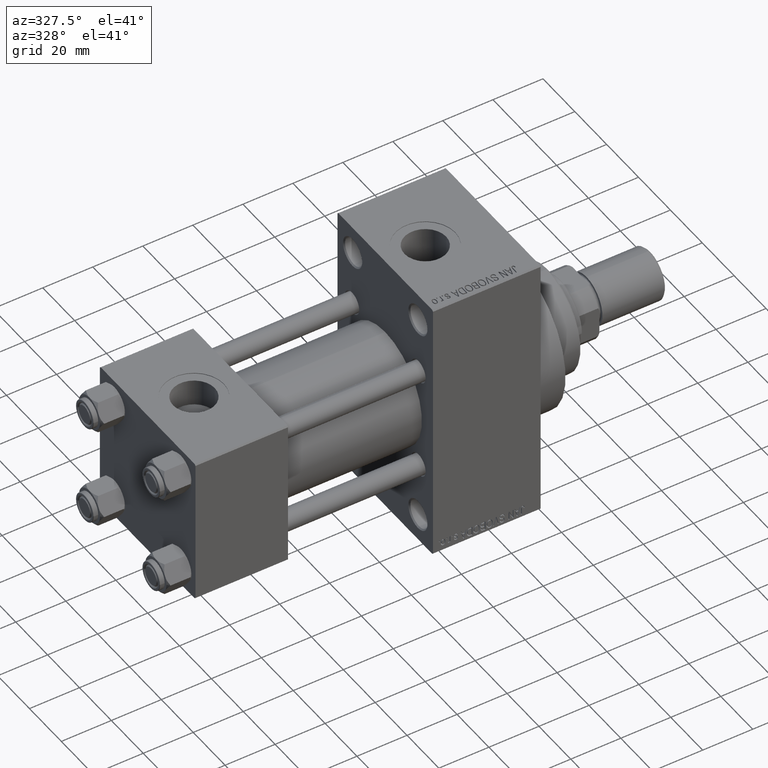
[diagram: clean part render]
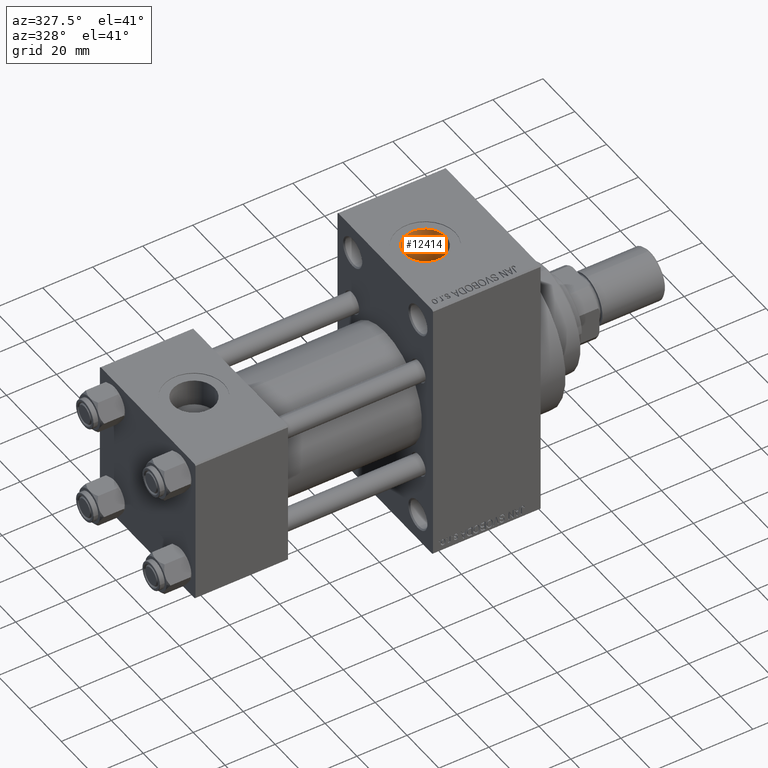
[diagram: same view with one face highlighted and labeled with its STEP entity id]
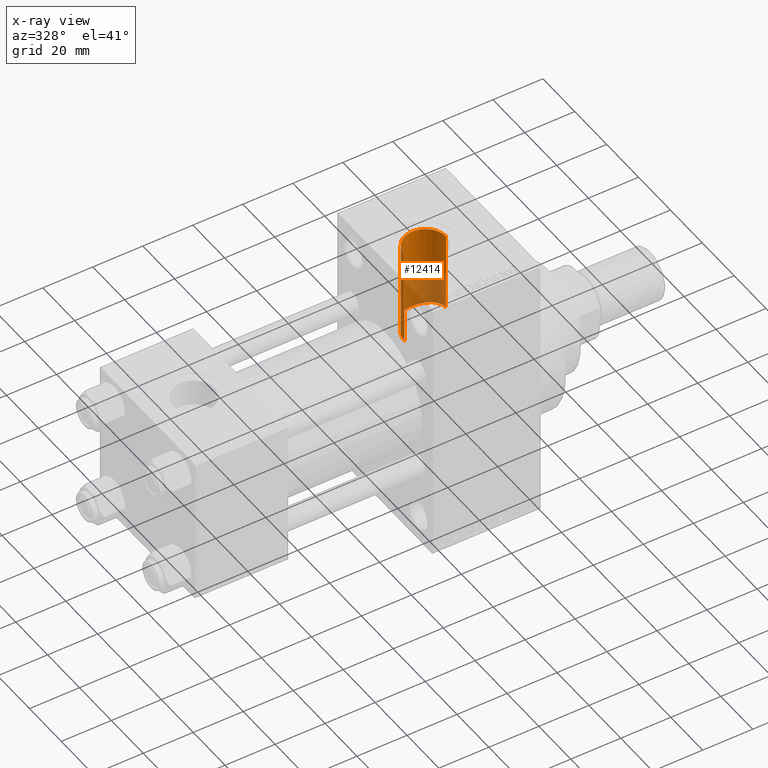
[diagram: x-ray of the same camera — body ghosted, the highlighted face saturated]
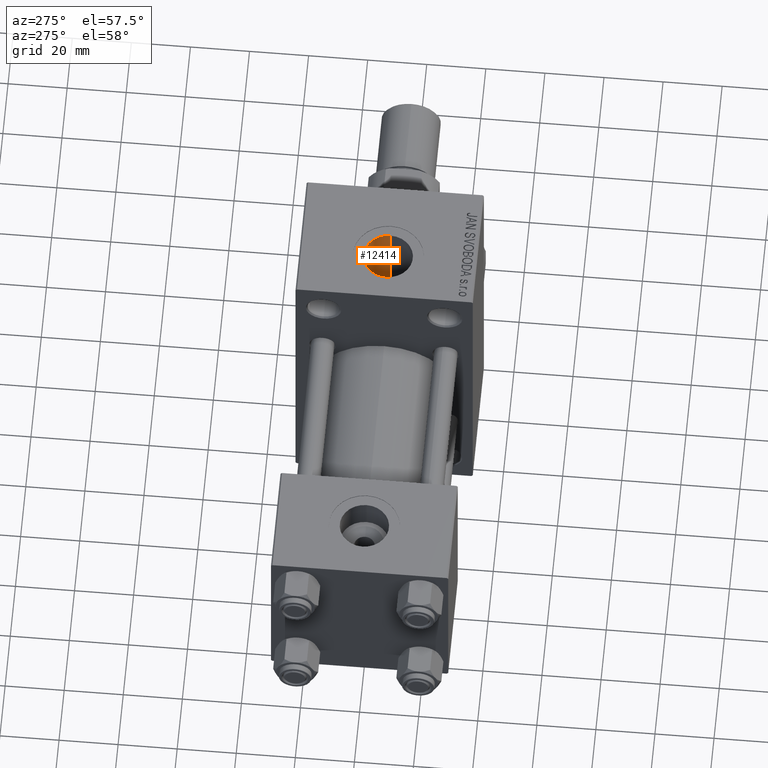
[diagram: same view with one face highlighted and labeled with its STEP entity id]
A machine part, auxiliary view. The second image highlights one B-rep face of the part: STEP entity #12414.
The next image is the same camera in x-ray: the body ghosted, the highlighted face saturated — about 41% of this face is hidden behind the body in this view.
A second angle (auxiliary view) of the same face is appended — the face is thin or edge-on in the first view.
In plain terms, the highlighted cylindrical surface (edge-blend (fillet) strip) has radius 8.33 mm, axis along (0, 0, -1).
Its self-contained STEP definition (entity closure, byte-faithful):
#73 = CIRCLE ( 'NONE', #45514, 8.330000000000003624 ) ;
#1595 = DIRECTION ( 'NONE',  ( -0.000000000000000000, -0.000000000000000000, -1.000000000000000000 ) ) ;
#1686 = CARTESIAN_POINT ( 'NONE',  ( 105.2948812944179906, 6.127635735486580693, 21.65933820537497922 ) ) ;
#2159 = CARTESIAN_POINT ( 'NONE',  ( 112.3216909083368051, 8.235391011504226810, 20.93889481549789977 ) ) ;
#2269 = CARTESIAN_POINT ( 'NONE',  ( 102.7174933147919518, 1.021562003714719946, 15.47433190880105158 ) ) ;
#2390 = CARTESIAN_POINT ( 'NONE',  ( 105.9286092801891357, 6.661339213704161821, 21.49628500278263488 ) ) ;
#5545 = CARTESIAN_POINT ( 'NONE',  ( 116.4564057214795554, 6.307878676097790738, 21.59935801946436840 ) ) ;
#5889 = CARTESIAN_POINT ( 'NONE',  ( 104.5783165169662681, 5.311397431478281916, 14.56289306040261522 ) ) ;
#6082 = B_SPLINE_CURVE_WITH_KNOTS ( 'NONE', 3,
 ( #38586, #1686, #2390, #42427, #27705, #17326, #6238, #38817, #13233, #16400, #28408, #31792, #42901, #16865, #2159, #35672, #13005, #24560, #9386, #27940, #31091, #5545, #45811, #31331, #12770, #43130, #27471, #42197, #20704, #23857, #24092, #24326, #39057, #46745 ),
 .UNSPECIFIED., .F., .F.,
 ( 4, 2, 2, 2, 2, 2, 2, 2, 2, 2, 2, 2, 2, 2, 2, 2, 4 ),
 ( 0.000000000000000000, 0.002532697760304313851, 0.003165872200380401204, 0.003799046640456488558, 0.005065395520608662397, 0.006331744400760835369, 0.007598093280913010075, 0.008864442161065183914, 0.01013079104121735602, 0.01139713992136953159, 0.01266348880152170543, 0.01392983768167388274, 0.01519618656182605658, 0.01646253544197823215, 0.01772888432213040599, 0.01899523320228257983, 0.02026158208243475367 ),
 .UNSPECIFIED. ) ;
#6116 = CARTESIAN_POINT ( 'NONE',  ( 104.7400000000000233, 5.495570943951171294, 14.49305695841976593 ) ) ;
#6238 = CARTESIAN_POINT ( 'NONE',  ( 107.5704381520594666, 7.594124707910266281, 21.17986642145408993 ) ) ;
#6322 = VECTOR ( 'NONE', #35007, 1000.000000000000000 ) ;
#6867 = CARTESIAN_POINT ( 'NONE',  ( 102.6700000000000017, 6.302828629382400162E-15, 77.29999999999999716 ) ) ;
#7236 = DIRECTION ( 'NONE',  ( -1.000000000000000000, 0.000000000000000000, 0.000000000000000000 ) ) ;
#9386 = CARTESIAN_POINT ( 'NONE',  ( 114.7236659699604076, 7.463206326023615667, 21.22729274660728649 ) ) ;
#10622 = ORIENTED_EDGE ( 'NONE', *, *, #40876, .F. ) ;
#11586 = ORIENTED_EDGE ( 'NONE', *, *, #43164, .T. ) ;
#12414 = ADVANCED_FACE ( 'NONE', ( #33762 ), #32797, .F. ) ;
#12633 = CARTESIAN_POINT ( 'NONE',  ( 104.7400000000000233, 5.495570943951171294, 14.49305695841976593 ) ) ;
#12770 = CARTESIAN_POINT ( 'NONE',  ( 117.6044044703109819, 5.093465402724836721, 21.91867937644421005 ) ) ;
#13005 = CARTESIAN_POINT ( 'NONE',  ( 113.5539892842377157, 7.939907640306449466, 21.05309719302650606 ) ) ;
#13111 = CARTESIAN_POINT ( 'NONE',  ( 104.4233358504306040, 5.118288244927969188, 14.63205129005097227 ) ) ;
#13233 = CARTESIAN_POINT ( 'NONE',  ( 108.5452642440799877, 7.971261652067459735, 21.04094346462040832 ) ) ;
#13462 = VERTEX_POINT ( 'NONE', #31442 ) ;
#14368 = EDGE_CURVE ( 'NONE', #27697, #37222, #40132, .T. ) ;
#14417 = ORIENTED_EDGE ( 'NONE', *, *, #14774, .F. ) ;
#14774 = EDGE_CURVE ( 'NONE', #24473, #43211, #20264, .T. ) ;
#15946 = ORIENTED_EDGE ( 'NONE', *, *, #20242, .T. ) ;
#16400 = CARTESIAN_POINT ( 'NONE',  ( 109.3628503782894370, 8.178415560073139190, 20.96129368941303284 ) ) ;
#16865 = CARTESIAN_POINT ( 'NONE',  ( 111.8956073634822985, 8.292491378959157444, 20.91614820275089670 ) ) ;
#17326 = CARTESIAN_POINT ( 'NONE',  ( 107.3806461157530379, 7.505553168791515795, 21.21148300119394392 ) ) ;
#17443 = CARTESIAN_POINT ( 'NONE',  ( 104.1328253103859112, 4.721366081625451905, 14.76490778285210759 ) ) ;
#19046 = CARTESIAN_POINT ( 'NONE',  ( 111.0000000000000000, 6.302828629382400162E-15, 77.29999999999999716 ) ) ;
#19576 = ORIENTED_EDGE ( 'NONE', *, *, #14368, .T. ) ;
#19752 = CARTESIAN_POINT ( 'NONE',  ( 104.7400000000000233, 5.495570943951171294, 77.29999999999999716 ) ) ;
#20242 = EDGE_CURVE ( 'NONE', #37222, #37125, #47673, .T. ) ;
#20264 = LINE ( 'NONE', #38384, #6322 ) ;
#20344 = CARTESIAN_POINT ( 'NONE',  ( 102.9013610442521554, 2.013840356729679204, 15.37670263641652646 ) ) ;
#20704 = CARTESIAN_POINT ( 'NONE',  ( 118.8200576936606012, 2.900268709722560345, 22.31592599689450651 ) ) ;
#21923 = DIRECTION ( 'NONE',  ( 0.000000000000000000, 0.000000000000000000, -1.000000000000000000 ) ) ;
#23857 = CARTESIAN_POINT ( 'NONE',  ( 119.0718577897083179, 2.099993510347366144, 22.40540423522785929 ) ) ;
#24092 = CARTESIAN_POINT ( 'NONE',  ( 119.1676325783012942, 1.690665256436935993, 22.44031409000265853 ) ) ;
#24326 = CARTESIAN_POINT ( 'NONE',  ( 119.2970606556255149, 0.8528513471424561398, 22.48774533044546686 ) ) ;
#24473 = VERTEX_POINT ( 'NONE', #26941 ) ;
#24560 = CARTESIAN_POINT ( 'NONE',  ( 114.3390036589862717, 7.643039262353300778, 21.16267907401478610 ) ) ;
#26896 = CARTESIAN_POINT ( 'NONE',  ( 102.6700000000000017, 6.302828629382400162E-15, 54.29999999999999716 ) ) ;
#26941 = CARTESIAN_POINT ( 'NONE',  ( 119.3300000000000125, 7.322959413072145713E-15, 54.29999999999999716 ) ) ;
#27288 = VECTOR ( 'NONE', #41934, 1000.000000000000000 ) ;
#27471 = CARTESIAN_POINT ( 'NONE',  ( 118.2906412269955041, 4.051397720758675547, 22.13557804199978918 ) ) ;
#27697 = VERTEX_POINT ( 'NONE', #26896 ) ;
#27705 = CARTESIAN_POINT ( 'NONE',  ( 107.0068402018593758, 7.313530319584613082, 21.27845421415786475 ) ) ;
#27940 = CARTESIAN_POINT ( 'NONE',  ( 115.4551373660956557, 7.051020349556421429, 21.36774480484795902 ) ) ;
#28408 = CARTESIAN_POINT ( 'NONE',  ( 109.7869814485030417, 8.252076137422069024, 20.93215498966413080 ) ) ;
#28609 = VECTOR ( 'NONE', #31933, 1000.000000000000000 ) ;
#28715 = EDGE_CURVE ( 'NONE', #27697, #24473, #73, .T. ) ;
#29365 = CARTESIAN_POINT ( 'NONE',  ( 119.3300000000000125, 2.755455287773006291E-15, 22.50000000000000355 ) ) ;
#29406 = CARTESIAN_POINT ( 'NONE',  ( 102.6700000000000017, 1.898202536900960226E-15, 15.50000000000000000 ) ) ;
#31091 = CARTESIAN_POINT ( 'NONE',  ( 115.8013027033389051, 6.819764595693539100, 21.44323695491643988 ) ) ;
#31199 = CARTESIAN_POINT ( 'NONE',  ( 103.0370892081069485, 2.496846008205422685, 15.30507511735610571 ) ) ;
#31331 = CARTESIAN_POINT ( 'NONE',  ( 117.3424573050792219, 5.416427024620320552, 21.84059232546011131 ) ) ;
#31438 = CARTESIAN_POINT ( 'NONE',  ( 102.6700000000000017, 1.898202536900960226E-15, 15.50000000000000000 ) ) ;
#31442 = CARTESIAN_POINT ( 'NONE',  ( 104.7400000000000233, 5.495570943951171294, 21.81854028114620903 ) ) ;
#31665 = CARTESIAN_POINT ( 'NONE',  ( 102.6700000000000159, 0.5065624092609245510, 15.50000000000000355 ) ) ;
#31792 = CARTESIAN_POINT ( 'NONE',  ( 110.6299664090158501, 8.332541612595157687, 20.90025414590698105 ) ) ;
#31933 = DIRECTION ( 'NONE',  ( 0.000000000000000000, 0.000000000000000000, -1.000000000000000000 ) ) ;
#32797 = CYLINDRICAL_SURFACE ( 'NONE', #34784, 8.330000000000003624 ) ;
#33762 = FACE_OUTER_BOUND ( 'NONE', #36509, .T. ) ;
#34644 = CARTESIAN_POINT ( 'NONE',  ( 111.0000000000000000, 6.302828629382400162E-15, 54.29999999999999716 ) ) ;
#34784 = AXIS2_PLACEMENT_3D ( 'NONE', #19046, #21923, #7236 ) ;
#35007 = DIRECTION ( 'NONE',  ( 0.000000000000000000, 0.000000000000000000, -1.000000000000000000 ) ) ;
#35672 = CARTESIAN_POINT ( 'NONE',  ( 113.1507344276368485, 8.058714127658461734, 21.00752502832086321 ) ) ;
#36509 = EDGE_LOOP ( 'NONE', ( #14417, #47732, #19576, #15946, #10622, #11586 ) ) ;
#37125 = VERTEX_POINT ( 'NONE', #12633 ) ;
#37222 = VERTEX_POINT ( 'NONE', #29406 ) ;
#38384 = CARTESIAN_POINT ( 'NONE',  ( 119.3300000000000125, 7.322959413072145713E-15, 77.29999999999999716 ) ) ;
#38586 = CARTESIAN_POINT ( 'NONE',  ( 104.7400000000000233, 5.495570943951171294, 21.81854028114620903 ) ) ;
#38817 = CARTESIAN_POINT ( 'NONE',  ( 108.1484526623329430, 7.837887213631857364, 21.09140609030399105 ) ) ;
#39057 = CARTESIAN_POINT ( 'NONE',  ( 119.3300000000000267, 0.4231877007468794472, 22.50000000000001066 ) ) ;
#40132 = LINE ( 'NONE', #6867, #28609 ) ;
#40876 = EDGE_CURVE ( 'NONE', #13462, #37125, #41697, .T. ) ;
#41697 = LINE ( 'NONE', #19752, #27288 ) ;
#41860 = DIRECTION ( 'NONE',  ( 1.000000000000000000, 0.000000000000000000, 0.000000000000000000 ) ) ;
#41934 = DIRECTION ( 'NONE',  ( 0.000000000000000000, 0.000000000000000000, -1.000000000000000000 ) ) ;
#42197 = CARTESIAN_POINT ( 'NONE',  ( 118.6630236205749185, 3.293226682608791922, 22.26100394775998126 ) ) ;
#42427 = CARTESIAN_POINT ( 'NONE',  ( 106.8222632032723993, 7.209673137828901623, 21.31393839863304862 ) ) ;
#42774 = CARTESIAN_POINT ( 'NONE',  ( 103.9966437893200748, 4.516904326484507237, 14.82887833823964741 ) ) ;
#42901 = CARTESIAN_POINT ( 'NONE',  ( 111.0516919710246952, 8.340554763309645736, 20.89702885938057264 ) ) ;
#43130 = CARTESIAN_POINT ( 'NONE',  ( 118.0784950564940488, 4.410947285040732524, 22.06616050573157040 ) ) ;
#43164 = EDGE_CURVE ( 'NONE', #13462, #43211, #6082, .T. ) ;
#43211 = VERTEX_POINT ( 'NONE', #29365 ) ;
#45514 = AXIS2_PLACEMENT_3D ( 'NONE', #34644, #1595, #41860 ) ;
#45811 = CARTESIAN_POINT ( 'NONE',  ( 116.7669506482355359, 6.025506335620713472, 21.68046190096923809 ) ) ;
#45921 = CARTESIAN_POINT ( 'NONE',  ( 103.6151021817839535, 3.885135241872870182, 15.01159398638490927 ) ) ;
#46153 = CARTESIAN_POINT ( 'NONE',  ( 103.3956202707475853, 3.437382318228922706, 15.12163903599512516 ) ) ;
#46745 = CARTESIAN_POINT ( 'NONE',  ( 119.3300000000000125, 2.755455287773006291E-15, 22.50000000000000355 ) ) ;
#47673 = B_SPLINE_CURVE_WITH_KNOTS ( 'NONE', 3,
 ( #31438, #31665, #2269, #20344, #31199, #46153, #45921, #42774, #17443, #13111, #5889, #6116 ),
 .UNSPECIFIED., .F., .F.,
 ( 4, 2, 2, 2, 2, 4 ),
 ( 0.02657822482517071053, 0.02809229971003308207, 0.02960637459489545709, 0.03112044947975782863, 0.03187748692218902308, 0.03263452436462022099 ),
 .UNSPECIFIED. ) ;
#47732 = ORIENTED_EDGE ( 'NONE', *, *, #28715, .F. ) ;